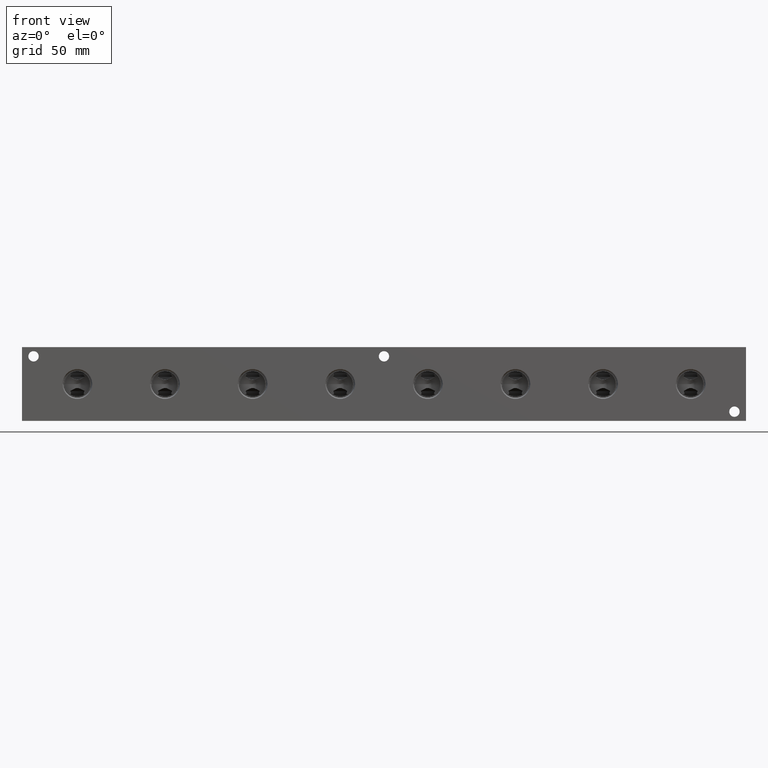
[diagram: clean part render]
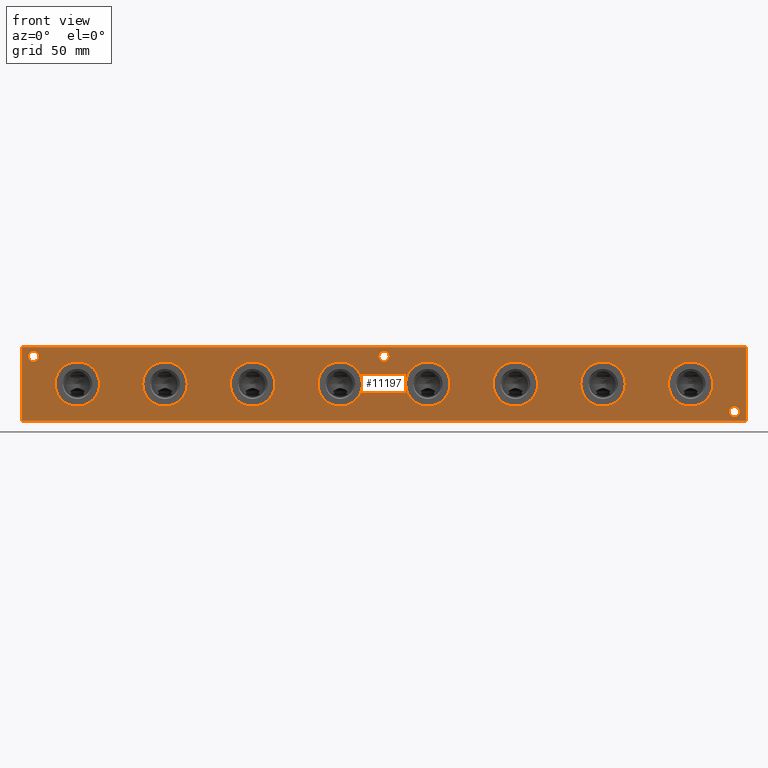
[diagram: same view with one face highlighted and labeled with its STEP entity id]
A machine part, front view. The second image highlights one B-rep face of the part: STEP entity #11197.
In plain terms, the highlighted planar face has unit normal (0, -1, 0).
Its self-contained STEP definition (entity closure, byte-faithful):
#460=CIRCLE('',#11739,3.5687);
#461=CIRCLE('',#11740,3.5687);
#463=CIRCLE('',#11749,3.5687);
#464=CIRCLE('',#11750,3.5687);
#466=CIRCLE('',#11758,3.5687);
#467=CIRCLE('',#11759,3.5687);
#469=CIRCLE('',#11769,15.3162);
#470=CIRCLE('',#11770,15.3162);
#480=CIRCLE('',#11785,15.3162);
#481=CIRCLE('',#11786,15.3162);
#491=CIRCLE('',#11801,15.3162);
#492=CIRCLE('',#11802,15.3162);
#502=CIRCLE('',#11817,15.3162);
#503=CIRCLE('',#11818,15.3162);
#513=CIRCLE('',#11833,15.3162);
#514=CIRCLE('',#11834,15.3162);
#524=CIRCLE('',#11849,15.3162);
#525=CIRCLE('',#11850,15.3162);
#535=CIRCLE('',#11865,15.3162);
#536=CIRCLE('',#11866,15.3162);
#603=CIRCLE('',#11978,15.3162);
#604=CIRCLE('',#11979,15.3162);
#803=FACE_BOUND('',#2322,.T.);
#804=FACE_BOUND('',#2323,.T.);
#805=FACE_BOUND('',#2324,.T.);
#806=FACE_BOUND('',#2325,.T.);
#807=FACE_BOUND('',#2326,.T.);
#808=FACE_BOUND('',#2327,.T.);
#809=FACE_BOUND('',#2328,.T.);
#810=FACE_BOUND('',#2329,.T.);
#811=FACE_BOUND('',#2330,.T.);
#812=FACE_BOUND('',#2331,.T.);
#813=FACE_BOUND('',#2332,.T.);
#1074=PLANE('',#12161);
#1652=FACE_OUTER_BOUND('',#2321,.T.);
#2321=EDGE_LOOP('',(#10153,#10154,#10155,#10156));
#2322=EDGE_LOOP('',(#10157,#10158));
#2323=EDGE_LOOP('',(#10159,#10160));
#2324=EDGE_LOOP('',(#10161,#10162));
#2325=EDGE_LOOP('',(#10163,#10164));
#2326=EDGE_LOOP('',(#10165,#10166));
#2327=EDGE_LOOP('',(#10167,#10168));
#2328=EDGE_LOOP('',(#10169,#10170));
#2329=EDGE_LOOP('',(#10171,#10172));
#2330=EDGE_LOOP('',(#10173,#10174));
#2331=EDGE_LOOP('',(#10175,#10176));
#2332=EDGE_LOOP('',(#10177,#10178));
#2590=LINE('',#17183,#3403);
#3152=LINE('',#20165,#3965);
#3157=LINE('',#20174,#3970);
#3158=LINE('',#20176,#3971);
#3403=VECTOR('',#12524,10.);
#3965=VECTOR('',#14862,10.);
#3970=VECTOR('',#14871,10.);
#3971=VECTOR('',#14874,10.);
#4586=VERTEX_POINT('',#17181);
#4587=VERTEX_POINT('',#17182);
#5132=VERTEX_POINT('',#19392);
#5133=VERTEX_POINT('',#19393);
#5137=VERTEX_POINT('',#19410);
#5138=VERTEX_POINT('',#19411);
#5142=VERTEX_POINT('',#19426);
#5143=VERTEX_POINT('',#19427);
#5147=VERTEX_POINT('',#19446);
#5148=VERTEX_POINT('',#19447);
#5158=VERTEX_POINT('',#19477);
#5159=VERTEX_POINT('',#19478);
#5169=VERTEX_POINT('',#19508);
#5170=VERTEX_POINT('',#19509);
#5180=VERTEX_POINT('',#19539);
#5181=VERTEX_POINT('',#19540);
#5191=VERTEX_POINT('',#19570);
#5192=VERTEX_POINT('',#19571);
#5202=VERTEX_POINT('',#19601);
#5203=VERTEX_POINT('',#19602);
#5213=VERTEX_POINT('',#19632);
#5214=VERTEX_POINT('',#19633);
#5265=VERTEX_POINT('',#19817);
#5266=VERTEX_POINT('',#19818);
#5375=VERTEX_POINT('',#20163);
#5377=VERTEX_POINT('',#20172);
#5834=EDGE_CURVE('',#4586,#4587,#2590,.T.);
#6607=EDGE_CURVE('',#5132,#5133,#460,.T.);
#6608=EDGE_CURVE('',#5133,#5132,#461,.T.);
#6617=EDGE_CURVE('',#5137,#5138,#463,.T.);
#6618=EDGE_CURVE('',#5138,#5137,#464,.T.);
#6626=EDGE_CURVE('',#5142,#5143,#466,.T.);
#6627=EDGE_CURVE('',#5143,#5142,#467,.T.);
#6637=EDGE_CURVE('',#5147,#5148,#469,.T.);
#6638=EDGE_CURVE('',#5148,#5147,#470,.T.);
#6652=EDGE_CURVE('',#5158,#5159,#480,.T.);
#6653=EDGE_CURVE('',#5159,#5158,#481,.T.);
#6667=EDGE_CURVE('',#5169,#5170,#491,.T.);
#6668=EDGE_CURVE('',#5170,#5169,#492,.T.);
#6682=EDGE_CURVE('',#5180,#5181,#502,.T.);
#6683=EDGE_CURVE('',#5181,#5180,#503,.T.);
#6697=EDGE_CURVE('',#5191,#5192,#513,.T.);
#6698=EDGE_CURVE('',#5192,#5191,#514,.T.);
#6712=EDGE_CURVE('',#5202,#5203,#524,.T.);
#6713=EDGE_CURVE('',#5203,#5202,#525,.T.);
#6727=EDGE_CURVE('',#5213,#5214,#535,.T.);
#6728=EDGE_CURVE('',#5214,#5213,#536,.T.);
#6815=EDGE_CURVE('',#5265,#5266,#603,.T.);
#6816=EDGE_CURVE('',#5266,#5265,#604,.T.);
#6980=EDGE_CURVE('',#5375,#4586,#3152,.T.);
#6985=EDGE_CURVE('',#5377,#4587,#3157,.T.);
#6986=EDGE_CURVE('',#5375,#5377,#3158,.T.);
#10153=ORIENTED_EDGE('',*,*,#6986,.T.);
#10154=ORIENTED_EDGE('',*,*,#6985,.T.);
#10155=ORIENTED_EDGE('',*,*,#5834,.F.);
#10156=ORIENTED_EDGE('',*,*,#6980,.F.);
#10157=ORIENTED_EDGE('',*,*,#6607,.T.);
#10158=ORIENTED_EDGE('',*,*,#6608,.T.);
#10159=ORIENTED_EDGE('',*,*,#6617,.T.);
#10160=ORIENTED_EDGE('',*,*,#6618,.T.);
#10161=ORIENTED_EDGE('',*,*,#6626,.T.);
#10162=ORIENTED_EDGE('',*,*,#6627,.T.);
#10163=ORIENTED_EDGE('',*,*,#6637,.T.);
#10164=ORIENTED_EDGE('',*,*,#6638,.T.);
#10165=ORIENTED_EDGE('',*,*,#6652,.T.);
#10166=ORIENTED_EDGE('',*,*,#6653,.T.);
#10167=ORIENTED_EDGE('',*,*,#6667,.T.);
#10168=ORIENTED_EDGE('',*,*,#6668,.T.);
#10169=ORIENTED_EDGE('',*,*,#6682,.T.);
#10170=ORIENTED_EDGE('',*,*,#6683,.T.);
#10171=ORIENTED_EDGE('',*,*,#6697,.T.);
#10172=ORIENTED_EDGE('',*,*,#6698,.T.);
#10173=ORIENTED_EDGE('',*,*,#6712,.T.);
#10174=ORIENTED_EDGE('',*,*,#6713,.T.);
#10175=ORIENTED_EDGE('',*,*,#6727,.T.);
#10176=ORIENTED_EDGE('',*,*,#6728,.T.);
#10177=ORIENTED_EDGE('',*,*,#6815,.T.);
#10178=ORIENTED_EDGE('',*,*,#6816,.T.);
#11197=ADVANCED_FACE('',(#1652,#803,#804,#805,#806,#807,#808,#809,#810,
#811,#812,#813),#1074,.T.);
#11739=AXIS2_PLACEMENT_3D('',#19394,#13913,#13914);
#11740=AXIS2_PLACEMENT_3D('',#19395,#13915,#13916);
#11749=AXIS2_PLACEMENT_3D('',#19412,#13936,#13937);
#11750=AXIS2_PLACEMENT_3D('',#19413,#13938,#13939);
#11758=AXIS2_PLACEMENT_3D('',#19428,#13956,#13957);
#11759=AXIS2_PLACEMENT_3D('',#19429,#13958,#13959);
#11769=AXIS2_PLACEMENT_3D('',#19448,#13982,#13983);
#11770=AXIS2_PLACEMENT_3D('',#19449,#13984,#13985);
#11785=AXIS2_PLACEMENT_3D('',#19479,#14018,#14019);
#11786=AXIS2_PLACEMENT_3D('',#19480,#14020,#14021);
#11801=AXIS2_PLACEMENT_3D('',#19510,#14054,#14055);
#11802=AXIS2_PLACEMENT_3D('',#19511,#14056,#14057);
#11817=AXIS2_PLACEMENT_3D('',#19541,#14090,#14091);
#11818=AXIS2_PLACEMENT_3D('',#19542,#14092,#14093);
#11833=AXIS2_PLACEMENT_3D('',#19572,#14126,#14127);
#11834=AXIS2_PLACEMENT_3D('',#19573,#14128,#14129);
#11849=AXIS2_PLACEMENT_3D('',#19603,#14162,#14163);
#11850=AXIS2_PLACEMENT_3D('',#19604,#14164,#14165);
#11865=AXIS2_PLACEMENT_3D('',#19634,#14198,#14199);
#11866=AXIS2_PLACEMENT_3D('',#19635,#14200,#14201);
#11978=AXIS2_PLACEMENT_3D('',#19819,#14444,#14445);
#11979=AXIS2_PLACEMENT_3D('',#19820,#14446,#14447);
#12161=AXIS2_PLACEMENT_3D('',#20175,#14872,#14873);
#12524=DIRECTION('',(1.,0.,0.));
#13913=DIRECTION('center_axis',(0.,1.,0.));
#13914=DIRECTION('ref_axis',(1.,0.,0.));
#13915=DIRECTION('center_axis',(0.,1.,0.));
#13916=DIRECTION('ref_axis',(1.,0.,0.));
#13936=DIRECTION('center_axis',(0.,1.,0.));
#13937=DIRECTION('ref_axis',(1.,0.,0.));
#13938=DIRECTION('center_axis',(0.,1.,0.));
#13939=DIRECTION('ref_axis',(1.,0.,0.));
#13956=DIRECTION('center_axis',(0.,1.,0.));
#13957=DIRECTION('ref_axis',(1.,0.,0.));
#13958=DIRECTION('center_axis',(0.,1.,0.));
#13959=DIRECTION('ref_axis',(1.,0.,0.));
#13982=DIRECTION('center_axis',(0.,1.,0.));
#13983=DIRECTION('ref_axis',(1.,0.,0.));
#13984=DIRECTION('center_axis',(0.,1.,0.));
#13985=DIRECTION('ref_axis',(1.,0.,0.));
#14018=DIRECTION('center_axis',(0.,1.,0.));
#14019=DIRECTION('ref_axis',(1.,0.,0.));
#14020=DIRECTION('center_axis',(0.,1.,0.));
#14021=DIRECTION('ref_axis',(1.,0.,0.));
#14054=DIRECTION('center_axis',(0.,1.,0.));
#14055=DIRECTION('ref_axis',(1.,0.,0.));
#14056=DIRECTION('center_axis',(0.,1.,0.));
#14057=DIRECTION('ref_axis',(1.,0.,0.));
#14090=DIRECTION('center_axis',(0.,1.,0.));
#14091=DIRECTION('ref_axis',(1.,0.,0.));
#14092=DIRECTION('center_axis',(0.,1.,0.));
#14093=DIRECTION('ref_axis',(1.,0.,0.));
#14126=DIRECTION('center_axis',(0.,1.,0.));
#14127=DIRECTION('ref_axis',(1.,0.,0.));
#14128=DIRECTION('center_axis',(0.,1.,0.));
#14129=DIRECTION('ref_axis',(1.,0.,0.));
#14162=DIRECTION('center_axis',(0.,1.,0.));
#14163=DIRECTION('ref_axis',(1.,0.,0.));
#14164=DIRECTION('center_axis',(0.,1.,0.));
#14165=DIRECTION('ref_axis',(1.,0.,0.));
#14198=DIRECTION('center_axis',(0.,1.,0.));
#14199=DIRECTION('ref_axis',(1.,0.,0.));
#14200=DIRECTION('center_axis',(0.,1.,0.));
#14201=DIRECTION('ref_axis',(1.,0.,0.));
#14444=DIRECTION('center_axis',(0.,1.,0.));
#14445=DIRECTION('ref_axis',(1.,0.,0.));
#14446=DIRECTION('center_axis',(0.,1.,0.));
#14447=DIRECTION('ref_axis',(1.,0.,0.));
#14862=DIRECTION('',(0.,0.,1.));
#14871=DIRECTION('',(0.,0.,1.));
#14872=DIRECTION('center_axis',(0.,-1.,0.));
#14873=DIRECTION('ref_axis',(1.,0.,0.));
#14874=DIRECTION('',(1.,0.,0.));
#17181=CARTESIAN_POINT('',(0.,0.,50.8));
#17182=CARTESIAN_POINT('',(498.475,0.,50.8));
#17183=CARTESIAN_POINT('',(0.,0.,50.8));
#19392=CARTESIAN_POINT('',(494.0935,0.,6.35));
#19393=CARTESIAN_POINT('',(486.9561,0.,6.35));
#19394=CARTESIAN_POINT('Origin',(490.5248,0.,6.35));
#19395=CARTESIAN_POINT('Origin',(490.5248,0.,6.35));
#19410=CARTESIAN_POINT('',(11.4935,0.,44.45));
#19411=CARTESIAN_POINT('',(4.3561,0.,44.45));
#19412=CARTESIAN_POINT('Origin',(7.9248,0.,44.45));
#19413=CARTESIAN_POINT('Origin',(7.9248,0.,44.45));
#19426=CARTESIAN_POINT('',(252.7935,0.,44.45));
#19427=CARTESIAN_POINT('',(245.6561,0.,44.45));
#19428=CARTESIAN_POINT('Origin',(249.2248,0.,44.45));
#19429=CARTESIAN_POINT('Origin',(249.2248,0.,44.45));
#19446=CARTESIAN_POINT('',(475.6912,0.,25.4));
#19447=CARTESIAN_POINT('',(445.0588,0.,25.4));
#19448=CARTESIAN_POINT('Origin',(460.375,0.,25.4));
#19449=CARTESIAN_POINT('Origin',(460.375,0.,25.4));
#19477=CARTESIAN_POINT('',(415.3662,0.,25.4));
#19478=CARTESIAN_POINT('',(384.7338,0.,25.4));
#19479=CARTESIAN_POINT('Origin',(400.05,0.,25.4));
#19480=CARTESIAN_POINT('Origin',(400.05,0.,25.4));
#19508=CARTESIAN_POINT('',(355.0412,0.,25.4));
#19509=CARTESIAN_POINT('',(324.4088,0.,25.4));
#19510=CARTESIAN_POINT('Origin',(339.725,0.,25.4));
#19511=CARTESIAN_POINT('Origin',(339.725,0.,25.4));
#19539=CARTESIAN_POINT('',(294.7162,0.,25.4));
#19540=CARTESIAN_POINT('',(264.0838,0.,25.4));
#19541=CARTESIAN_POINT('Origin',(279.4,0.,25.4));
#19542=CARTESIAN_POINT('Origin',(279.4,0.,25.4));
#19570=CARTESIAN_POINT('',(234.3912,0.,25.4));
#19571=CARTESIAN_POINT('',(203.7588,0.,25.4));
#19572=CARTESIAN_POINT('Origin',(219.075,0.,25.4));
#19573=CARTESIAN_POINT('Origin',(219.075,0.,25.4));
#19601=CARTESIAN_POINT('',(174.0662,0.,25.4));
#19602=CARTESIAN_POINT('',(143.4338,0.,25.4));
#19603=CARTESIAN_POINT('Origin',(158.75,0.,25.4));
#19604=CARTESIAN_POINT('Origin',(158.75,0.,25.4));
#19632=CARTESIAN_POINT('',(113.7412,0.,25.4));
#19633=CARTESIAN_POINT('',(83.1088,0.,25.4));
#19634=CARTESIAN_POINT('Origin',(98.425,0.,25.4));
#19635=CARTESIAN_POINT('Origin',(98.425,0.,25.4));
#19817=CARTESIAN_POINT('',(53.4162,0.,25.4));
#19818=CARTESIAN_POINT('',(22.7838,0.,25.4));
#19819=CARTESIAN_POINT('Origin',(38.1,0.,25.4));
#19820=CARTESIAN_POINT('Origin',(38.1,0.,25.4));
#20163=CARTESIAN_POINT('',(0.,0.,0.));
#20165=CARTESIAN_POINT('',(0.,0.,0.));
#20172=CARTESIAN_POINT('',(498.475,0.,0.));
#20174=CARTESIAN_POINT('',(498.475,0.,0.));
#20175=CARTESIAN_POINT('Origin',(0.,0.,0.));
#20176=CARTESIAN_POINT('',(0.,0.,0.));